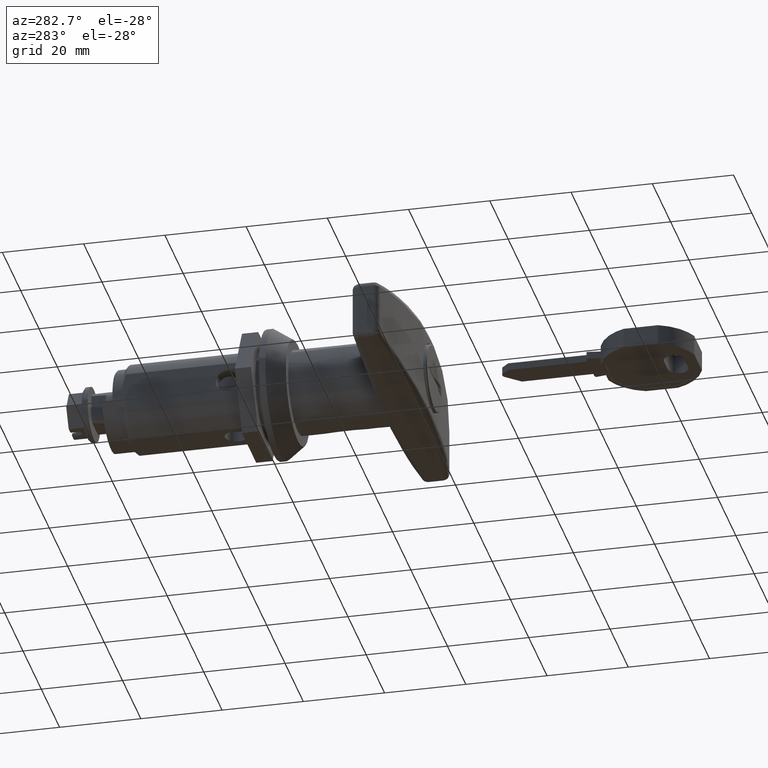
[diagram: clean part render]
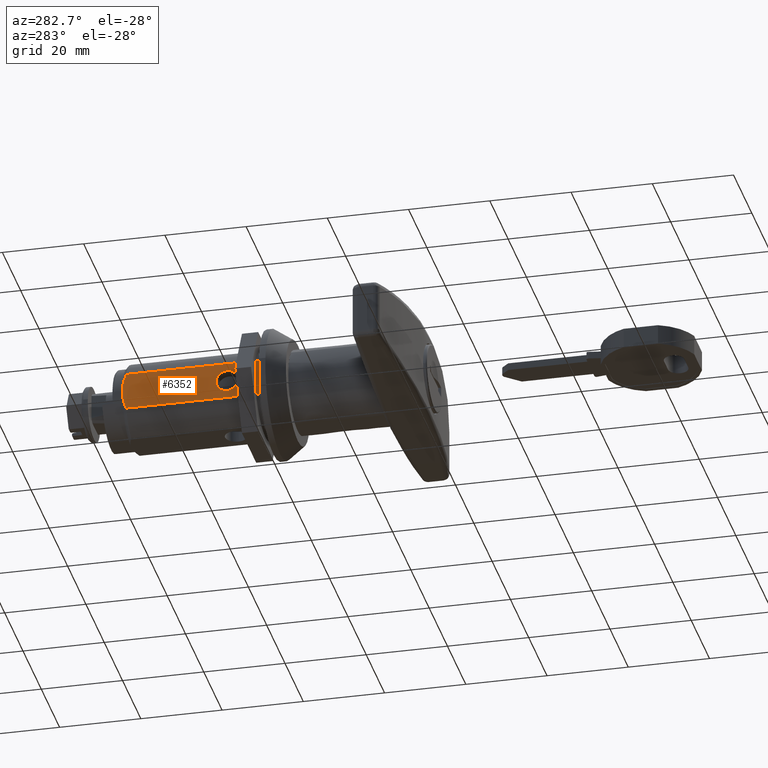
[diagram: same view with one face highlighted and labeled with its STEP entity id]
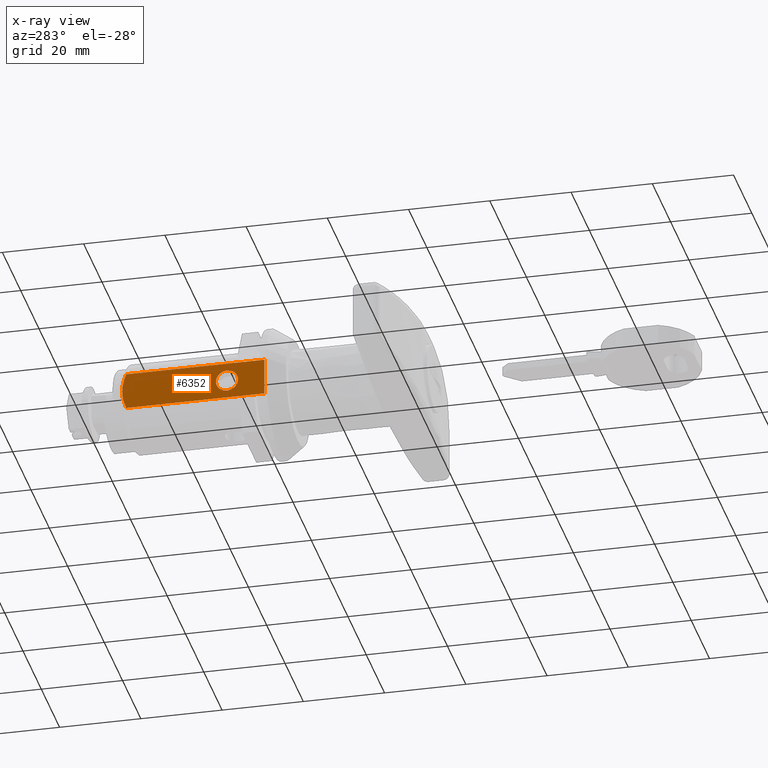
[diagram: x-ray of the same camera — body ghosted, the highlighted face saturated]
A machine part, auxiliary view. The second image highlights one B-rep face of the part: STEP entity #6352.
The next image is the same camera in x-ray: the body ghosted, the highlighted face saturated — about 0% of this face is hidden behind the body in this view.
In plain terms, the highlighted face is a freeform B-spline surface patch.
Its self-contained STEP definition (entity closure, byte-faithful):
#4020=CARTESIAN_POINT('',(35.000001662407350,10.000000474974501,0.0));
#4021=VERTEX_POINT('',#4020);
#4749=CARTESIAN_POINT('',(11.899387169384770,10.000000474974501,-0.057489825089071));
#4750=VERTEX_POINT('',#4749);
#4751=CARTESIAN_POINT('',(9.200000436976492,10.000000474974501,2.700059946168046));
#4752=VERTEX_POINT('',#4751);
#4753=CARTESIAN_POINT('',(11.899387169384770,10.000000474974499,-0.057489825089071));
#4754=CARTESIAN_POINT('',(11.900000565219617,10.000000474974501,-0.028718272696176));
#4755=CARTESIAN_POINT('',(11.900000565219621,10.000000474974501,0.000059817924921));
#4756=CARTESIAN_POINT('',(11.900000565219617,10.000000474974499,2.700059946168046));
#4757=CARTESIAN_POINT('',(9.200000436976492,10.000000474974501,2.700059946168046));
#4765=(BOUNDED_CURVE()B_SPLINE_CURVE(2,(#4753,#4754,#4755,#4756,#4757),.UNSPECIFIED.,.F.,.U.)B_SPLINE_CURVE_WITH_KNOTS((3,2,3),(0.746248196849697,0.750000000000000,1.0),.UNSPECIFIED.)CURVE()GEOMETRIC_REPRESENTATION_ITEM()RATIONAL_B_SPLINE_CURVE((0.991340907121884,0.995604489195813,1.0,0.707106781186548,1.0))REPRESENTATION_ITEM(''));
#4766=EDGE_CURVE('',#4750,#4752,#4765,.T.);
#4775=CARTESIAN_POINT('',(6.508323507576721,10.000000474974501,0.211899380447875));
#4776=VERTEX_POINT('',#4775);
#4782=CARTESIAN_POINT('',(9.200000436976492,10.000000474974501,2.700059946168046));
#4783=CARTESIAN_POINT('',(6.704145979783651,10.000000474974499,2.700059946168047));
#4784=CARTESIAN_POINT('',(6.508323507576721,10.000000474974497,0.211899380447875));
#4792=(BOUNDED_CURVE()B_SPLINE_CURVE(2,(#4782,#4783,#4784),.UNSPECIFIED.,.F.,.U.)B_SPLINE_CURVE_WITH_KNOTS((3,3),(0.0,0.236331301397527),.UNSPECIFIED.)CURVE()GEOMETRIC_REPRESENTATION_ITEM()RATIONAL_B_SPLINE_CURVE((1.0,0.723120657709224,0.969723357767812))REPRESENTATION_ITEM(''));
#4793=EDGE_CURVE('',#4752,#4776,#4792,.T.);
#4820=CARTESIAN_POINT('',(9.200000436976492,10.000000474974501,-2.699940310318204));
#4821=VERTEX_POINT('',#4820);
#4822=CARTESIAN_POINT('',(9.200000436976492,10.000000474974501,-2.699940310318204));
#4823=CARTESIAN_POINT('',(11.843051379807328,10.000000474974499,-2.699940310318204));
#4824=CARTESIAN_POINT('',(11.899387169384772,10.000000474974499,-0.057489825089071));
#4832=(BOUNDED_CURVE()B_SPLINE_CURVE(2,(#4822,#4823,#4824),.UNSPECIFIED.,.F.,.U.)B_SPLINE_CURVE_WITH_KNOTS((3,3),(0.500000000000000,0.746248196849697),.UNSPECIFIED.)CURVE()GEOMETRIC_REPRESENTATION_ITEM()RATIONAL_B_SPLINE_CURVE((1.0,0.711502291990735,0.991340907121884))REPRESENTATION_ITEM(''));
#4833=EDGE_CURVE('',#4821,#4750,#4832,.T.);
#4835=CARTESIAN_POINT('',(6.508323507576721,10.000000474974497,0.211899380447875));
#4836=CARTESIAN_POINT('',(6.500000308733366,10.000000474974499,0.106143105852387));
#4837=CARTESIAN_POINT('',(6.500000308733366,10.000000474974501,0.000059817924921));
#4838=CARTESIAN_POINT('',(6.500000308733365,10.000000474974499,-2.699940310318203));
#4839=CARTESIAN_POINT('',(9.200000436976492,10.000000474974501,-2.699940310318204));
#4847=(BOUNDED_CURVE()B_SPLINE_CURVE(2,(#4835,#4836,#4837,#4838,#4839),.UNSPECIFIED.,.F.,.U.)B_SPLINE_CURVE_WITH_KNOTS((3,2,3),(0.236331301397527,0.250000000000000,0.500000000000000),.UNSPECIFIED.)CURVE()GEOMETRIC_REPRESENTATION_ITEM()RATIONAL_B_SPLINE_CURVE((0.969723357767812,0.983986123477323,1.0,0.707106781186548,1.0))REPRESENTATION_ITEM(''));
#4848=EDGE_CURVE('',#4776,#4821,#4847,.T.);
#5971=CARTESIAN_POINT('',(34.000001662407399,10.000000474974501,4.582575912616511));
#5972=VERTEX_POINT('',#5971);
#5973=CARTESIAN_POINT('',(34.000001662407357,10.000000474974540,4.582575912616520));
#5974=CARTESIAN_POINT('',(34.305557231166652,10.000000474974540,3.849121305406907));
#5975=CARTESIAN_POINT('',(34.555791680979773,10.000000474974501,3.103594640283223));
#5976=CARTESIAN_POINT('',(34.816437545379692,10.000000474974501,1.960273782563849));
#5977=CARTESIAN_POINT('',(34.884145943242487,10.000000474974501,1.574982816829509));
#5978=CARTESIAN_POINT('',(34.975940454188063,10.000000474974501,0.794881722367755));
#5979=CARTESIAN_POINT('',(35.000001709113221,10.000000474974501,0.400066169145606));
#5980=CARTESIAN_POINT('',(35.000001662407350,10.000000474974501,0.0));
#5981=B_SPLINE_CURVE_WITH_KNOTS('',3,(#5973,#5974,#5975,#5976,#5977,#5978,#5979,#5980),.UNSPECIFIED.,.F.,.U.,(4,2,2,4),(0.0,0.500000000000000,0.750000000000000,1.0),.UNSPECIFIED.);
#5982=EDGE_CURVE('',#5972,#4021,#5981,.T.);
#6107=CARTESIAN_POINT('',(34.000001662407357,10.000000474974501,-4.582575912616520));
#6108=VERTEX_POINT('',#6107);
#6122=CARTESIAN_POINT('',(35.000001662407350,10.000000474974501,0.0));
#6123=CARTESIAN_POINT('',(35.000001662407392,10.000000522471939,-0.396967018372108));
#6124=CARTESIAN_POINT('',(34.976303655092003,10.000000474974501,-0.789816934426955));
#6125=CARTESIAN_POINT('',(34.885205688729400,10.000000474974501,-1.567924338854864));
#6126=CARTESIAN_POINT('',(34.817828941519700,10.000000474974501,-1.953185859866992));
#6127=CARTESIAN_POINT('',(34.644157401785783,10.000000474974501,-2.716947591861443));
#6128=CARTESIAN_POINT('',(34.537882828691437,10.000000474974501,-3.095451315605856));
#6129=CARTESIAN_POINT('',(34.353152166139608,10.000000474974501,-3.658808214837356));
#6130=CARTESIAN_POINT('',(34.287430953870953,10.000000474974501,-3.845606176339907));
#6131=CARTESIAN_POINT('',(34.148934456130910,10.000000474974501,-4.216061590864221));
#6132=CARTESIAN_POINT('',(34.076090885718592,10.000000474974501,-4.399931585029139));
#6133=CARTESIAN_POINT('',(34.000001662407357,10.000000474974501,-4.582575912616520));
#6134=B_SPLINE_CURVE_WITH_KNOTS('',3,(#6122,#6123,#6124,#6125,#6126,#6127,#6128,#6129,#6130,#6131,#6132,#6133),.UNSPECIFIED.,.F.,.U.,(4,2,2,2,2,4),(0.0,0.250000000000000,0.500000000000000,0.750000000000000,0.875000000000000,1.0),.UNSPECIFIED.);
#6135=EDGE_CURVE('',#4021,#6108,#6134,.T.);
#6301=CARTESIAN_POINT('',(0.0,10.000000474974540,4.582575912616520));
#6302=VERTEX_POINT('',#6301);
#6303=CARTESIAN_POINT('',(34.000001662407399,10.000000474974501,4.582575912616511));
#6304=CARTESIAN_POINT('',(0.0,10.000000474974540,4.582575912616520));
#6305=QUASI_UNIFORM_CURVE('',1,(#6303,#6304),.UNSPECIFIED.,.F.,.U.);
#6306=EDGE_CURVE('',#5972,#6302,#6305,.T.);
#6324=CARTESIAN_POINT('',(-1.748249890155867,10.000000474974501,5.040375109742819));
#6325=CARTESIAN_POINT('',(-1.748249890155867,10.000000474974501,-5.040374781971448));
#6326=CARTESIAN_POINT('',(36.748249987941222,10.000000474974501,5.040375109742819));
#6327=CARTESIAN_POINT('',(36.748249987941222,10.000000474974501,-5.040374781971448));
#6328=B_SPLINE_SURFACE_WITH_KNOTS('',1,1,((#6324,#6326),(#6325,#6327)),.UNSPECIFIED.,.F.,.F.,.U.,(2,2),(2,2),(0.0,10.080749891714269),(0.0,38.496499878097090),.UNSPECIFIED.);
#6329=ORIENTED_EDGE('',*,*,#5982,.T.);
#6330=ORIENTED_EDGE('',*,*,#6135,.T.);
#6331=CARTESIAN_POINT('',(0.0,10.000000474974501,-4.582575912616520));
#6332=VERTEX_POINT('',#6331);
#6333=CARTESIAN_POINT('',(34.000001662407357,10.000000474974501,-4.582575912616520));
#6334=CARTESIAN_POINT('',(0.0,10.000000474974501,-4.582575912616520));
#6335=QUASI_UNIFORM_CURVE('',1,(#6333,#6334),.UNSPECIFIED.,.F.,.U.);
#6336=EDGE_CURVE('',#6108,#6332,#6335,.T.);
#6337=ORIENTED_EDGE('',*,*,#6336,.T.);
#6338=CARTESIAN_POINT('',(0.0,10.000000474974501,-4.582575912616520));
#6339=CARTESIAN_POINT('',(0.0,10.000000474974540,4.582575912616520));
#6340=QUASI_UNIFORM_CURVE('',1,(#6338,#6339),.UNSPECIFIED.,.F.,.U.);
#6341=EDGE_CURVE('',#6332,#6302,#6340,.T.);
#6342=ORIENTED_EDGE('',*,*,#6341,.T.);
#6343=ORIENTED_EDGE('',*,*,#6306,.F.);
#6344=EDGE_LOOP('',(#6329,#6330,#6337,#6342,#6343));
#6345=FACE_OUTER_BOUND('',#6344,.T.);
#6346=ORIENTED_EDGE('',*,*,#4793,.T.);
#6347=ORIENTED_EDGE('',*,*,#4848,.T.);
#6348=ORIENTED_EDGE('',*,*,#4833,.T.);
#6349=ORIENTED_EDGE('',*,*,#4766,.T.);
#6350=EDGE_LOOP('',(#6346,#6347,#6348,#6349));
#6351=FACE_BOUND('',#6350,.T.);
#6352=ADVANCED_FACE('',(#6345,#6351),#6328,.F.);